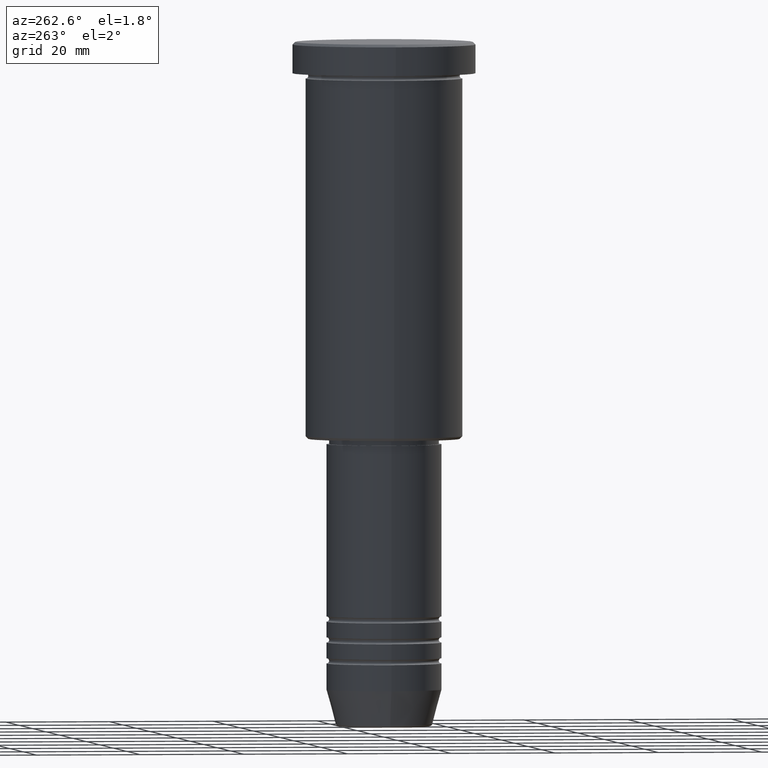
[diagram: clean part render]
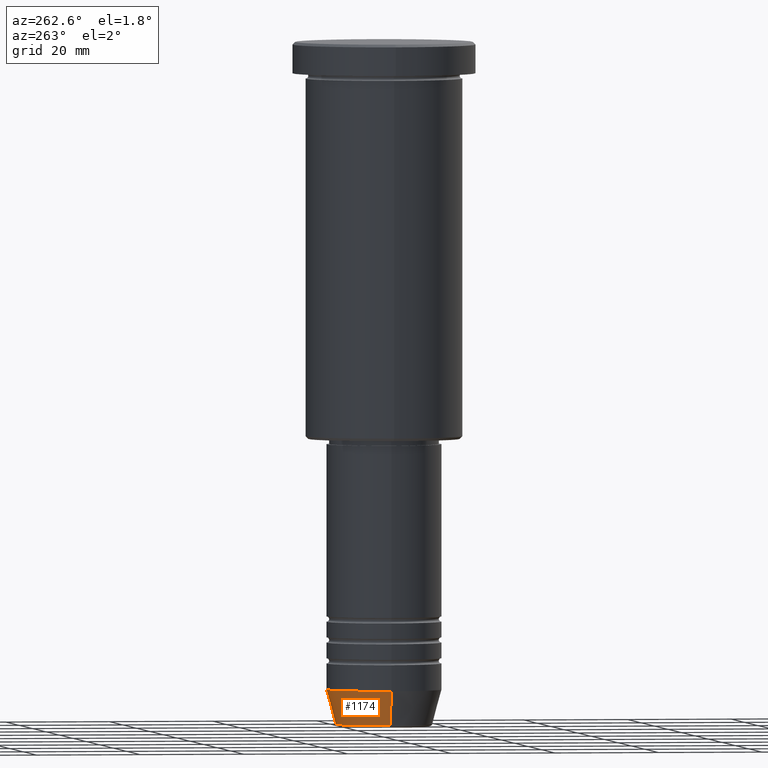
[diagram: same view with one face highlighted and labeled with its STEP entity id]
A machine part, auxiliary view. The second image highlights one B-rep face of the part: STEP entity #1174.
In plain terms, the highlighted conical surface has half-angle 15 deg.
Its self-contained STEP definition (entity closure, byte-faithful):
#33 = CIRCLE ( 'NONE', #264, 11.00000000000000000 ) ;
#45 = VERTEX_POINT ( 'NONE', #608 ) ;
#67 = DIRECTION ( 'NONE',  ( -0.000000000000000000, -0.000000000000000000, 1.000000000000000000 ) ) ;
#103 = DIRECTION ( 'NONE',  ( -0.000000000000000000, -0.000000000000000000, 1.000000000000000000 ) ) ;
#163 = EDGE_LOOP ( 'NONE', ( #779, #679, #891, #508 ) ) ;
#219 = DIRECTION ( 'NONE',  ( -0.2588190451025213501, 3.169619151431772337E-17, 0.9659258262890680902 ) ) ;
#264 = AXIS2_PLACEMENT_3D ( 'NONE', #1066, #67, #974 ) ;
#266 = CONICAL_SURFACE ( 'NONE', #763, 11.00000000000000000, 0.2617993877991500740 ) ;
#273 = EDGE_CURVE ( 'NONE', #45, #1145, #674, .T. ) ;
#323 = DIRECTION ( 'NONE',  ( 1.000000000000000000, 0.000000000000000000, 0.000000000000000000 ) ) ;
#329 = FACE_OUTER_BOUND ( 'NONE', #163, .T. ) ;
#370 = CARTESIAN_POINT ( 'NONE',  ( 11.00000000000000000, 0.000000000000000000, -124.0000000000000000 ) ) ;
#385 = CARTESIAN_POINT ( 'NONE',  ( 9.223655072137187716, 0.000000000000000000, -130.6294095225512422 ) ) ;
#450 = EDGE_CURVE ( 'NONE', #522, #1145, #33, .T. ) ;
#498 = DIRECTION ( 'NONE',  ( 0.2588190451025213501, 0.000000000000000000, 0.9659258262890680902 ) ) ;
#508 = ORIENTED_EDGE ( 'NONE', *, *, #1084, .F. ) ;
#522 = VERTEX_POINT ( 'NONE', #370 ) ;
#523 = CARTESIAN_POINT ( 'NONE',  ( 0.000000000000000000, 0.000000000000000000, -124.0000000000000000 ) ) ;
#550 = AXIS2_PLACEMENT_3D ( 'NONE', #840, #103, #824 ) ;
#551 = CIRCLE ( 'NONE', #550, 9.223655072137187716 ) ;
#565 = VECTOR ( 'NONE', #219, 1000.000000000000000 ) ;
#594 = CARTESIAN_POINT ( 'NONE',  ( 11.00000000000000000, 0.000000000000000000, -124.0000000000000000 ) ) ;
#608 = CARTESIAN_POINT ( 'NONE',  ( -9.223655072137187716, 1.238341722557647004E-15, -130.6294095225512422 ) ) ;
#674 = LINE ( 'NONE', #1118, #565 ) ;
#679 = ORIENTED_EDGE ( 'NONE', *, *, #273, .T. ) ;
#712 = VECTOR ( 'NONE', #498, 1000.000000000000000 ) ;
#748 = EDGE_CURVE ( 'NONE', #821, #45, #551, .T. ) ;
#763 = AXIS2_PLACEMENT_3D ( 'NONE', #523, #888, #323 ) ;
#779 = ORIENTED_EDGE ( 'NONE', *, *, #748, .T. ) ;
#821 = VERTEX_POINT ( 'NONE', #385 ) ;
#824 = DIRECTION ( 'NONE',  ( 1.000000000000000000, 0.000000000000000000, 0.000000000000000000 ) ) ;
#840 = CARTESIAN_POINT ( 'NONE',  ( 0.000000000000000000, 0.000000000000000000, -130.6294095225512422 ) ) ;
#888 = DIRECTION ( 'NONE',  ( -0.000000000000000000, -0.000000000000000000, 1.000000000000000000 ) ) ;
#891 = ORIENTED_EDGE ( 'NONE', *, *, #450, .F. ) ;
#958 = CARTESIAN_POINT ( 'NONE',  ( -11.00000000000000000, 1.347111479062088405E-15, -124.0000000000000000 ) ) ;
#974 = DIRECTION ( 'NONE',  ( 1.000000000000000000, 0.000000000000000000, 0.000000000000000000 ) ) ;
#1066 = CARTESIAN_POINT ( 'NONE',  ( 0.000000000000000000, 0.000000000000000000, -124.0000000000000000 ) ) ;
#1084 = EDGE_CURVE ( 'NONE', #821, #522, #1123, .T. ) ;
#1118 = CARTESIAN_POINT ( 'NONE',  ( -11.00000000000000000, 1.347111479062088405E-15, -124.0000000000000000 ) ) ;
#1123 = LINE ( 'NONE', #594, #712 ) ;
#1145 = VERTEX_POINT ( 'NONE', #958 ) ;
#1174 = ADVANCED_FACE ( 'NONE', ( #329 ), #266, .T. ) ;